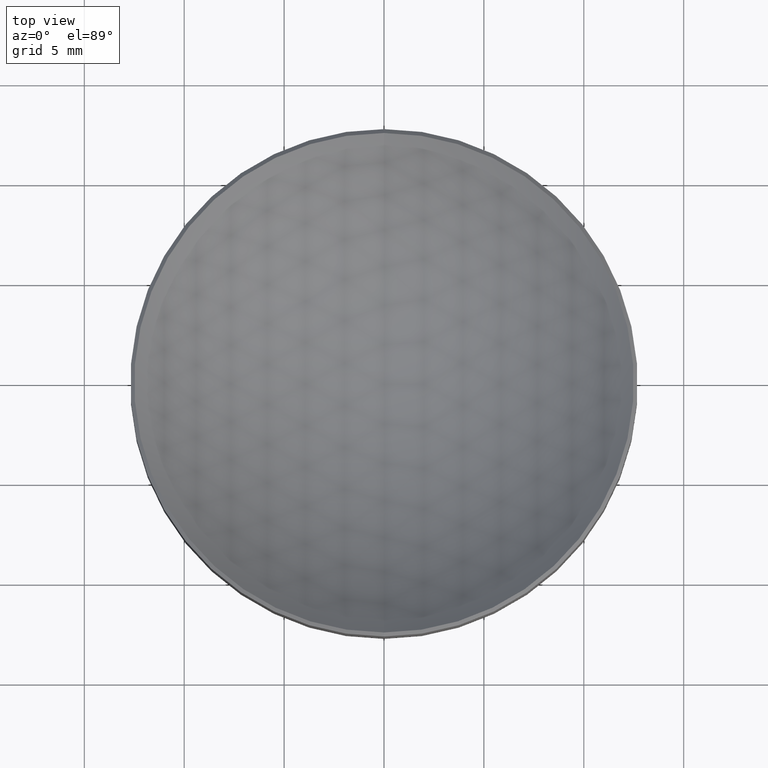
[diagram: clean part render]
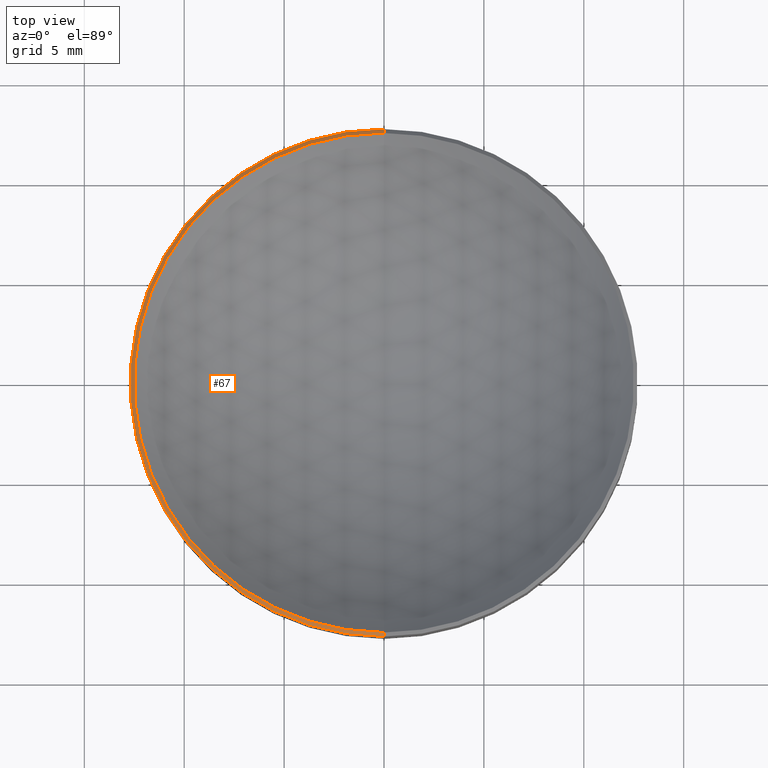
[diagram: same view with one face highlighted and labeled with its STEP entity id]
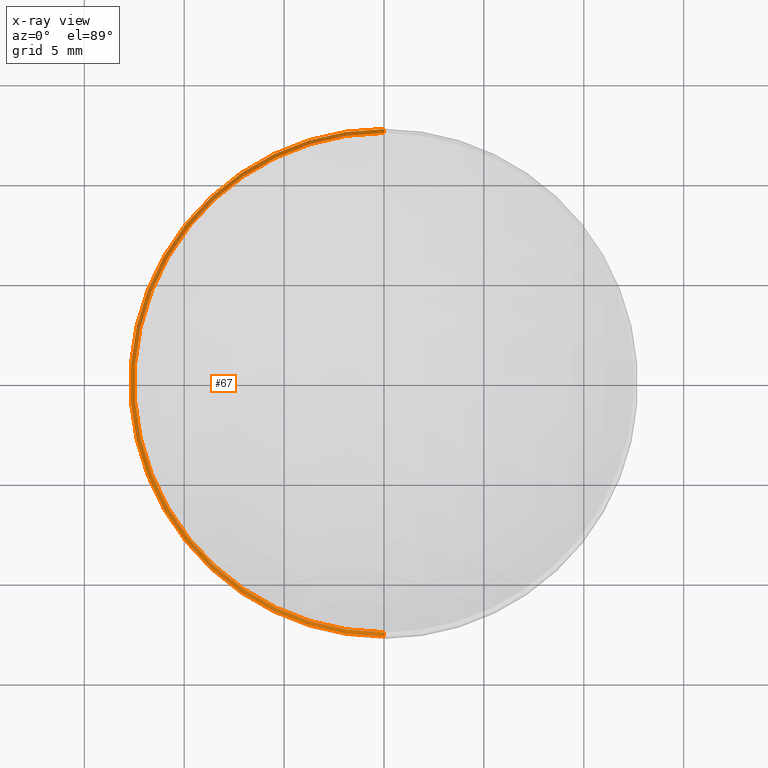
[diagram: x-ray of the same camera — body ghosted, the highlighted face saturated]
A machine part, top view. The second image highlights one B-rep face of the part: STEP entity #67.
The next image is the same camera in x-ray: the body ghosted, the highlighted face saturated — about 0% of this face is hidden behind the body in this view.
In plain terms, the highlighted conical surface has half-angle 45 deg.
Its self-contained STEP definition (entity closure, byte-faithful):
#1 = DIRECTION ( 'NONE',  ( 0.0000000000000000000, 1.000000000000000000, 3.073328992872295900E-016 ) ) ;
#2 = CARTESIAN_POINT ( 'NONE',  ( 0.0000000000000000000, -8.099691259872544800E-017, 0.1399751683140528200 ) ) ;
#3 = EDGE_CURVE ( 'NONE', #208, #56, #245, .T. ) ;
#4 = CARTESIAN_POINT ( 'NONE',  ( 0.0000000000000000000, 0.5000000000000000000, 0.1321802904112091300 ) ) ;
#15 = AXIS2_PLACEMENT_3D ( 'NONE', #168, #32, #190 ) ;
#16 = CARTESIAN_POINT ( 'NONE',  ( 0.0000000000000000000, 0.4922051220971562200, 0.1399751683140529900 ) ) ;
#32 = DIRECTION ( 'NONE',  ( -0.0000000000000000000, 3.061515884555943100E-016, -1.000000000000000000 ) ) ;
#40 = CIRCLE ( 'NONE', #15, 0.4922051220971562800 ) ;
#53 = ORIENTED_EDGE ( 'NONE', *, *, #74, .T. ) ;
#56 = VERTEX_POINT ( 'NONE', #4 ) ;
#60 = LINE ( 'NONE', #103, #265 ) ;
#62 = DIRECTION ( 'NONE',  ( -0.0000000000000000000, 3.061515884555943100E-016, -1.000000000000000000 ) ) ;
#67 = ADVANCED_FACE ( 'NONE', ( #299 ), #219, .T. ) ;
#71 = EDGE_CURVE ( 'NONE', #235, #208, #95, .T. ) ;
#74 = EDGE_CURVE ( 'NONE', #235, #301, #40, .T. ) ;
#88 = CARTESIAN_POINT ( 'NONE',  ( 6.075504134369456800E-017, -0.4922051220971563300, 0.1399751683140526800 ) ) ;
#95 = LINE ( 'NONE', #251, #142 ) ;
#97 = DIRECTION ( 'NONE',  ( -0.0000000000000000000, 3.061515884555943100E-016, -1.000000000000000000 ) ) ;
#103 = CARTESIAN_POINT ( 'NONE',  ( 0.0000000000000000000, 0.4922051220971562200, 0.1399751683140529900 ) ) ;
#106 = CARTESIAN_POINT ( 'NONE',  ( 6.123233995736767300E-017, -0.5000000000000001100, 0.1321802904112088200 ) ) ;
#121 = DIRECTION ( 'NONE',  ( 8.659560562354895900E-017, -0.7071067811865442400, -0.7071067811865507900 ) ) ;
#138 = DIRECTION ( 'NONE',  ( 0.0000000000000000000, 0.7071067811865446900, -0.7071067811865503500 ) ) ;
#141 = EDGE_CURVE ( 'NONE', #301, #56, #60, .T. ) ;
#142 = VECTOR ( 'NONE', #121, 39.37007874015748100 ) ;
#166 = DIRECTION ( 'NONE',  ( 0.0000000000000000000, 1.000000000000000000, 3.122000213831229100E-016 ) ) ;
#168 = CARTESIAN_POINT ( 'NONE',  ( 0.0000000000000000000, -8.099691259872544800E-017, 0.1399751683140528200 ) ) ;
#170 = ORIENTED_EDGE ( 'NONE', *, *, #3, .F. ) ;
#185 = AXIS2_PLACEMENT_3D ( 'NONE', #2, #62, #166 ) ;
#186 = CARTESIAN_POINT ( 'NONE',  ( 0.0000000000000000000, -7.861049834695238200E-017, 0.1321802904112089900 ) ) ;
#190 = DIRECTION ( 'NONE',  ( 0.0000000000000000000, 1.000000000000000000, 3.122000213831229100E-016 ) ) ;
#202 = AXIS2_PLACEMENT_3D ( 'NONE', #186, #97, #1 ) ;
#204 = ORIENTED_EDGE ( 'NONE', *, *, #141, .T. ) ;
#208 = VERTEX_POINT ( 'NONE', #106 ) ;
#215 = EDGE_LOOP ( 'NONE', ( #228, #53, #204, #170 ) ) ;
#219 = CONICAL_SURFACE ( 'NONE', #185, 0.4922051220971562800, 0.7853981633974439500 ) ;
#228 = ORIENTED_EDGE ( 'NONE', *, *, #71, .F. ) ;
#235 = VERTEX_POINT ( 'NONE', #88 ) ;
#245 = CIRCLE ( 'NONE', #202, 0.5000000000000001100 ) ;
#251 = CARTESIAN_POINT ( 'NONE',  ( 6.027774273002146400E-017, -0.4922051220971563300, 0.1399751683140526800 ) ) ;
#265 = VECTOR ( 'NONE', #138, 39.37007874015748100 ) ;
#299 = FACE_OUTER_BOUND ( 'NONE', #215, .T. ) ;
#301 = VERTEX_POINT ( 'NONE', #16 ) ;